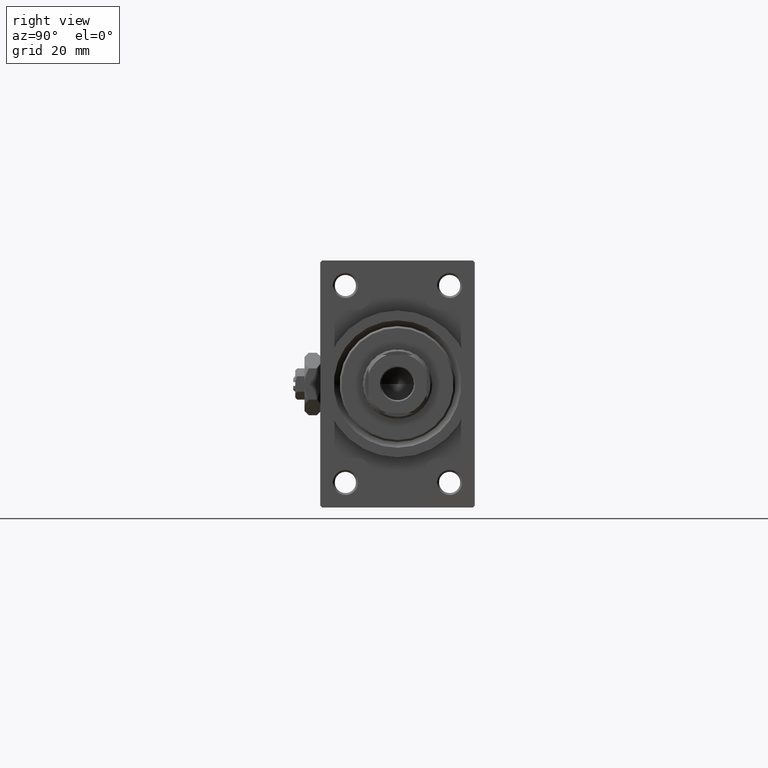
[diagram: clean part render]
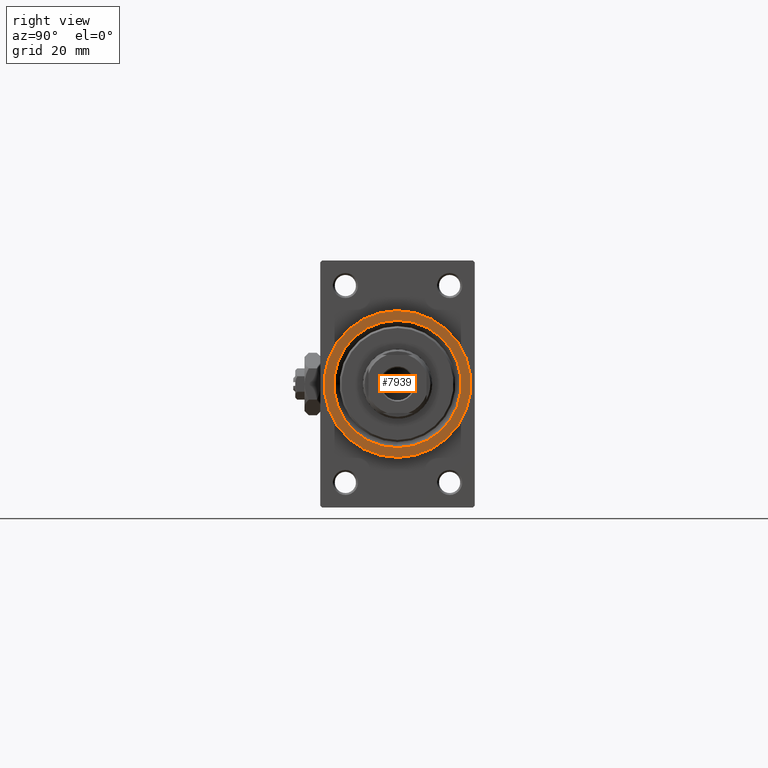
[diagram: same view with one face highlighted and labeled with its STEP entity id]
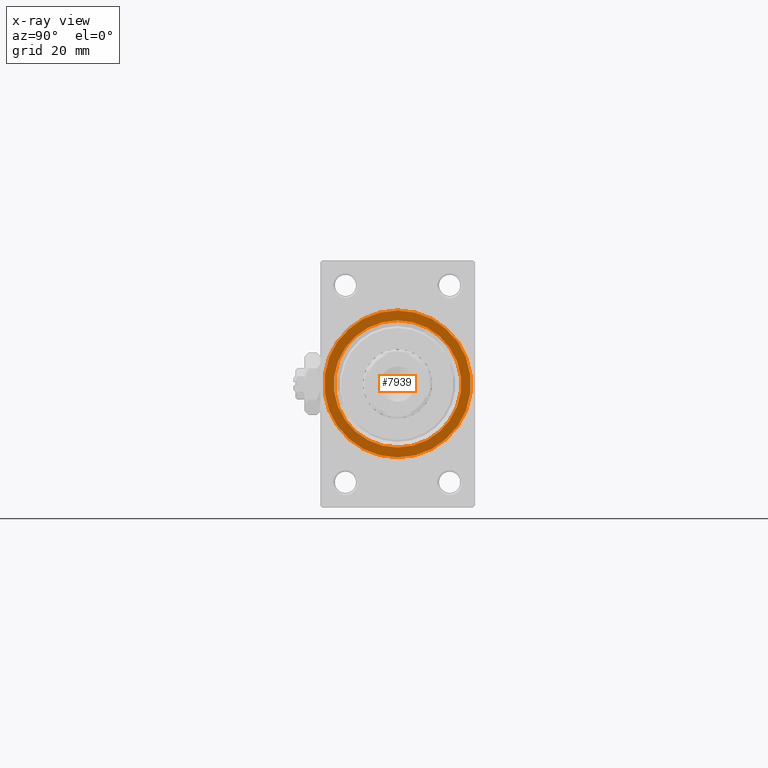
[diagram: x-ray of the same camera — body ghosted, the highlighted face saturated]
A machine part, right view. The second image highlights one B-rep face of the part: STEP entity #7939.
The next image is the same camera in x-ray: the body ghosted, the highlighted face saturated — about 0% of this face is hidden behind the body in this view.
In plain terms, the highlighted planar face has unit normal (1, 0, 0).
Its self-contained STEP definition (entity closure, byte-faithful):
#334 = ORIENTED_EDGE ( 'NONE', *, *, #45643, .T. ) ;
#1908 = AXIS2_PLACEMENT_3D ( 'NONE', #32263, #32738, #17149 ) ;
#3442 = DIRECTION ( 'NONE',  ( 0.000000000000000000, 0.000000000000000000, -1.000000000000000000 ) ) ;
#5856 = DIRECTION ( 'NONE',  ( 0.000000000000000000, 0.000000000000000000, -1.000000000000000000 ) ) ;
#7939 = ADVANCED_FACE ( 'NONE', ( #12724, #32019 ), #24093, .T. ) ;
#8984 = CARTESIAN_POINT ( 'NONE',  ( 149.0000000000000284, 2.020667218593135861E-15, 16.50000000000002842 ) ) ;
#9166 = AXIS2_PLACEMENT_3D ( 'NONE', #47404, #17154, #9747 ) ;
#9606 = ORIENTED_EDGE ( 'NONE', *, *, #21283, .T. ) ;
#9747 = DIRECTION ( 'NONE',  ( 0.000000000000000000, 0.000000000000000000, -1.000000000000000000 ) ) ;
#10894 = CARTESIAN_POINT ( 'NONE',  ( 149.0000000000000284, 0.000000000000000000, 0.000000000000000000 ) ) ;
#12724 = FACE_BOUND ( 'NONE', #25246, .T. ) ;
#13264 = CIRCLE ( 'NONE', #33007, 19.00000000000000000 ) ;
#14533 = EDGE_CURVE ( 'NONE', #20169, #40443, #13264, .T. ) ;
#17122 = CARTESIAN_POINT ( 'NONE',  ( 149.0000000000000284, 0.000000000000000000, -16.50000000000002842 ) ) ;
#17149 = DIRECTION ( 'NONE',  ( 0.000000000000000000, 0.000000000000000000, -1.000000000000000000 ) ) ;
#17154 = DIRECTION ( 'NONE',  ( 1.000000000000000000, 0.000000000000000000, 0.000000000000000000 ) ) ;
#18448 = CARTESIAN_POINT ( 'NONE',  ( 149.0000000000000284, 0.000000000000000000, 19.00000000000000000 ) ) ;
#20169 = VERTEX_POINT ( 'NONE', #42752 ) ;
#21283 = EDGE_CURVE ( 'NONE', #48802, #46218, #23242, .T. ) ;
#21684 = AXIS2_PLACEMENT_3D ( 'NONE', #10894, #49052, #3442 ) ;
#21847 = EDGE_CURVE ( 'NONE', #46218, #48802, #37485, .T. ) ;
#23242 = CIRCLE ( 'NONE', #1908, 16.50000000000002842 ) ;
#24093 = PLANE ( 'NONE',  #9166 ) ;
#24521 = AXIS2_PLACEMENT_3D ( 'NONE', #40019, #25149, #5856 ) ;
#25149 = DIRECTION ( 'NONE',  ( 1.000000000000000000, 0.000000000000000000, 0.000000000000000000 ) ) ;
#25246 = EDGE_LOOP ( 'NONE', ( #9606, #26404 ) ) ;
#26404 = ORIENTED_EDGE ( 'NONE', *, *, #21847, .T. ) ;
#32019 = FACE_OUTER_BOUND ( 'NONE', #41291, .T. ) ;
#32263 = CARTESIAN_POINT ( 'NONE',  ( 149.0000000000000284, 0.000000000000000000, 0.000000000000000000 ) ) ;
#32738 = DIRECTION ( 'NONE',  ( -1.000000000000000000, -0.000000000000000000, -0.000000000000000000 ) ) ;
#33007 = AXIS2_PLACEMENT_3D ( 'NONE', #49038, #42307, #41332 ) ;
#34036 = ORIENTED_EDGE ( 'NONE', *, *, #14533, .T. ) ;
#36362 = CIRCLE ( 'NONE', #24521, 19.00000000000000000 ) ;
#37485 = CIRCLE ( 'NONE', #21684, 16.50000000000002842 ) ;
#40019 = CARTESIAN_POINT ( 'NONE',  ( 149.0000000000000284, 0.000000000000000000, 0.000000000000000000 ) ) ;
#40443 = VERTEX_POINT ( 'NONE', #18448 ) ;
#41291 = EDGE_LOOP ( 'NONE', ( #334, #34036 ) ) ;
#41332 = DIRECTION ( 'NONE',  ( 0.000000000000000000, 0.000000000000000000, -1.000000000000000000 ) ) ;
#42307 = DIRECTION ( 'NONE',  ( 1.000000000000000000, 0.000000000000000000, 0.000000000000000000 ) ) ;
#42752 = CARTESIAN_POINT ( 'NONE',  ( 149.0000000000000284, 2.326828918379970970E-15, -19.00000000000000000 ) ) ;
#45643 = EDGE_CURVE ( 'NONE', #40443, #20169, #36362, .T. ) ;
#46218 = VERTEX_POINT ( 'NONE', #8984 ) ;
#47404 = CARTESIAN_POINT ( 'NONE',  ( 149.0000000000000284, 0.000000000000000000, 0.000000000000000000 ) ) ;
#48802 = VERTEX_POINT ( 'NONE', #17122 ) ;
#49038 = CARTESIAN_POINT ( 'NONE',  ( 149.0000000000000284, 0.000000000000000000, 0.000000000000000000 ) ) ;
#49052 = DIRECTION ( 'NONE',  ( -1.000000000000000000, -0.000000000000000000, -0.000000000000000000 ) ) ;